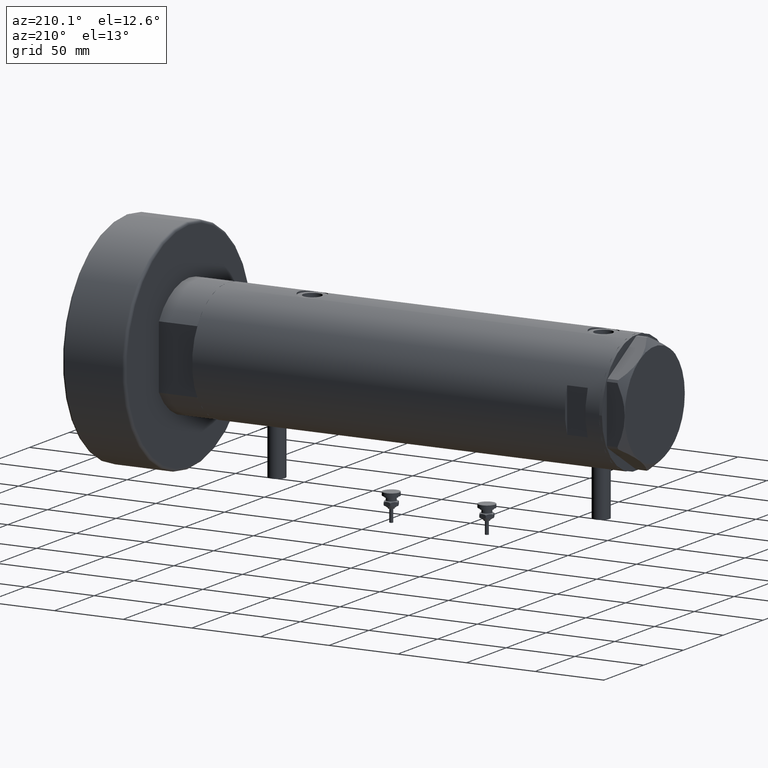
[diagram: clean part render]
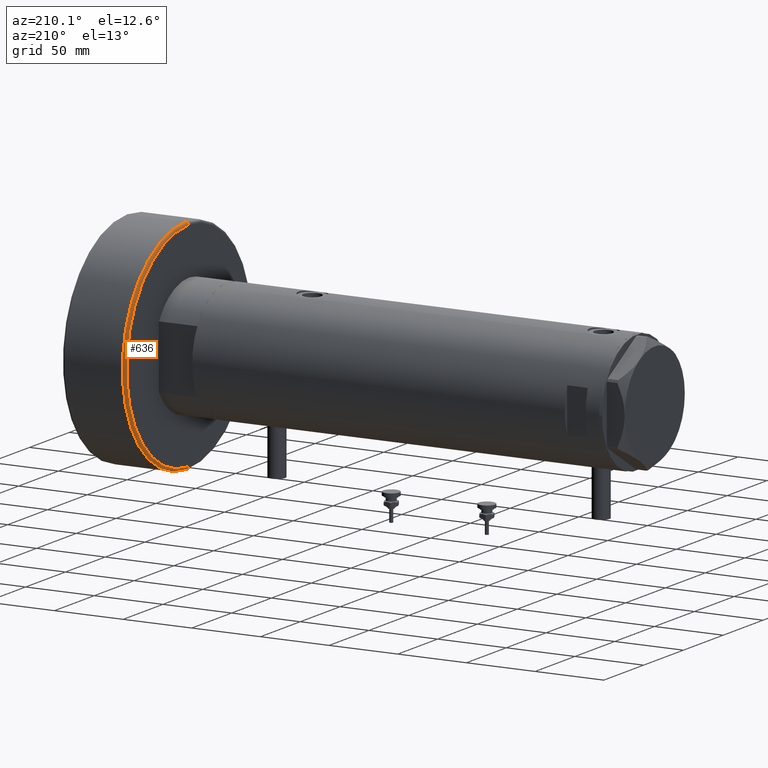
[diagram: same view with one face highlighted and labeled with its STEP entity id]
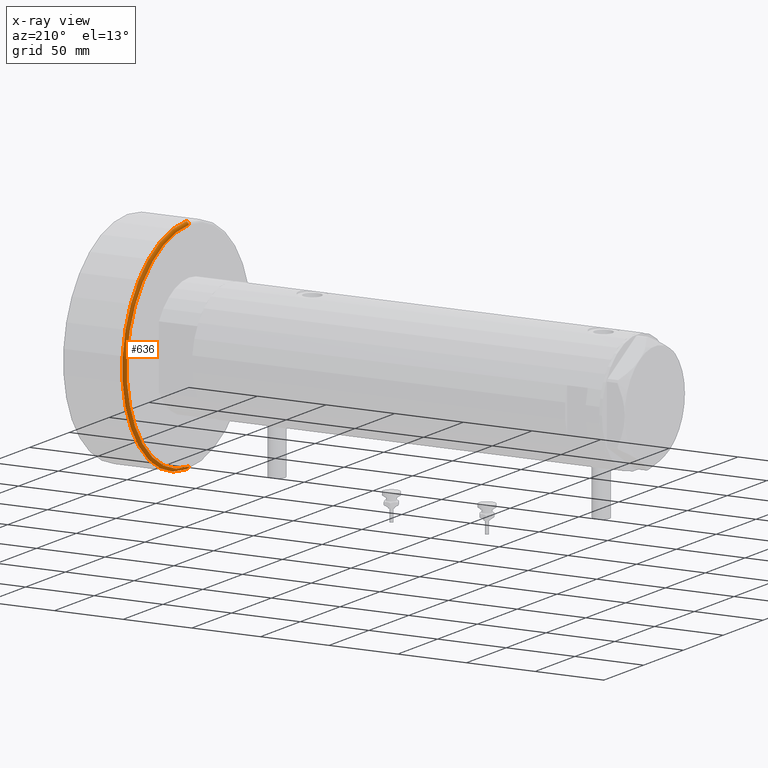
[diagram: x-ray of the same camera — body ghosted, the highlighted face saturated]
A machine part, auxiliary view. The second image highlights one B-rep face of the part: STEP entity #636.
The next image is the same camera in x-ray: the body ghosted, the highlighted face saturated — about 0% of this face is hidden behind the body in this view.
In plain terms, the highlighted toroidal blend (fillet) surface has major radius 78 mm and minor (blend) radius 2 mm.
Its self-contained STEP definition (entity closure, byte-faithful):
#96 = DIRECTION ( 'NONE',  ( 1.000000000000000000, 0.000000000000000000, 0.000000000000000000 ) ) ;
#237 = CARTESIAN_POINT ( 'NONE',  ( -78.00000000000000000, 9.552245033349355756E-15, 2.000000000000001776 ) ) ;
#269 = FACE_OUTER_BOUND ( 'NONE', #6100, .T. ) ;
#383 = DIRECTION ( 'NONE',  ( 1.000000000000000000, 0.000000000000000000, 0.000000000000000000 ) ) ;
#392 = CARTESIAN_POINT ( 'NONE',  ( 0.000000000000000000, 0.000000000000000000, 2.000000000000001776 ) ) ;
#470 = DIRECTION ( 'NONE',  ( 0.000000000000000000, 0.000000000000000000, -1.000000000000000000 ) ) ;
#500 = ORIENTED_EDGE ( 'NONE', *, *, #4394, .F. ) ;
#636 = ADVANCED_FACE ( 'NONE', ( #269 ), #3073, .T. ) ;
#990 = DIRECTION ( 'NONE',  ( -1.000000000000000000, 1.224646799147349509E-16, 0.000000000000000000 ) ) ;
#1047 = AXIS2_PLACEMENT_3D ( 'NONE', #237, #3027, #990 ) ;
#1076 = ORIENTED_EDGE ( 'NONE', *, *, #4034, .F. ) ;
#1350 = CARTESIAN_POINT ( 'NONE',  ( 78.00000000000000000, 0.000000000000000000, 2.000000000000001776 ) ) ;
#1540 = DIRECTION ( 'NONE',  ( 0.000000000000000000, 0.000000000000000000, 1.000000000000000000 ) ) ;
#1817 = ORIENTED_EDGE ( 'NONE', *, *, #6286, .F. ) ;
#1852 = CARTESIAN_POINT ( 'NONE',  ( 80.00000000000000000, 9.797174393178826052E-15, 2.000000000000001776 ) ) ;
#2182 = AXIS2_PLACEMENT_3D ( 'NONE', #3832, #4337, #383 ) ;
#2548 = CARTESIAN_POINT ( 'NONE',  ( 0.000000000000000000, 0.000000000000000000, 2.000000000000001776 ) ) ;
#2633 = VERTEX_POINT ( 'NONE', #4053 ) ;
#2810 = DIRECTION ( 'NONE',  ( 0.000000000000000000, -1.000000000000000000, 0.000000000000000000 ) ) ;
#2898 = CIRCLE ( 'NONE', #5676, 80.00000000000000000 ) ;
#3018 = AXIS2_PLACEMENT_3D ( 'NONE', #1350, #2810, #470 ) ;
#3027 = DIRECTION ( 'NONE',  ( 1.224646799147353207E-16, 1.000000000000000000, -0.000000000000000000 ) ) ;
#3073 = TOROIDAL_SURFACE ( 'NONE', #6159, 78.00000000000000000, 2.000000000000000000 ) ;
#3237 = VERTEX_POINT ( 'NONE', #1852 ) ;
#3614 = ORIENTED_EDGE ( 'NONE', *, *, #5021, .T. ) ;
#3696 = CARTESIAN_POINT ( 'NONE',  ( -78.00000000000000000, 9.674709713264090904E-15, 0.000000000000000000 ) ) ;
#3832 = CARTESIAN_POINT ( 'NONE',  ( 0.000000000000000000, 0.000000000000000000, 0.000000000000000000 ) ) ;
#3946 = VERTEX_POINT ( 'NONE', #4310 ) ;
#4034 = EDGE_CURVE ( 'NONE', #3237, #3946, #2898, .T. ) ;
#4053 = CARTESIAN_POINT ( 'NONE',  ( 78.00000000000000000, 0.000000000000000000, 0.000000000000000000 ) ) ;
#4310 = CARTESIAN_POINT ( 'NONE',  ( -80.00000000000000000, 0.000000000000000000, 2.000000000000001776 ) ) ;
#4337 = DIRECTION ( 'NONE',  ( -0.000000000000000000, -0.000000000000000000, -1.000000000000000000 ) ) ;
#4394 = EDGE_CURVE ( 'NONE', #5731, #2633, #6095, .T. ) ;
#4647 = CIRCLE ( 'NONE', #3018, 2.000000000000000000 ) ;
#5021 = EDGE_CURVE ( 'NONE', #5731, #3946, #5589, .T. ) ;
#5589 = CIRCLE ( 'NONE', #1047, 2.000000000000001776 ) ;
#5676 = AXIS2_PLACEMENT_3D ( 'NONE', #2548, #1540, #96 ) ;
#5731 = VERTEX_POINT ( 'NONE', #3696 ) ;
#5809 = DIRECTION ( 'NONE',  ( 0.000000000000000000, 0.000000000000000000, 1.000000000000000000 ) ) ;
#6095 = CIRCLE ( 'NONE', #2182, 78.00000000000000000 ) ;
#6100 = EDGE_LOOP ( 'NONE', ( #500, #3614, #1076, #1817 ) ) ;
#6159 = AXIS2_PLACEMENT_3D ( 'NONE', #392, #5809, #6290 ) ;
#6286 = EDGE_CURVE ( 'NONE', #2633, #3237, #4647, .T. ) ;
#6290 = DIRECTION ( 'NONE',  ( 1.000000000000000000, 0.000000000000000000, 0.000000000000000000 ) ) ;